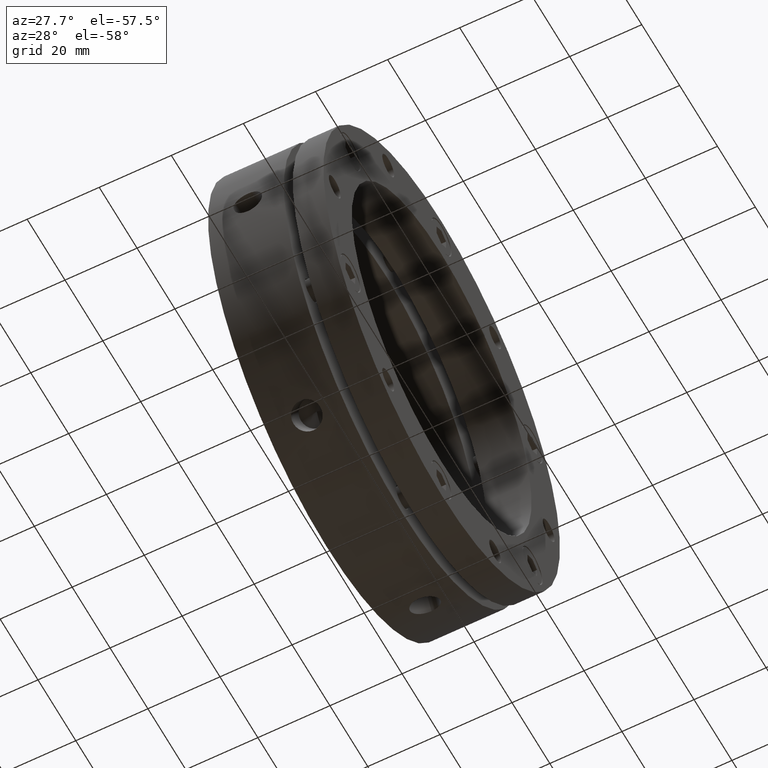
[diagram: clean part render]
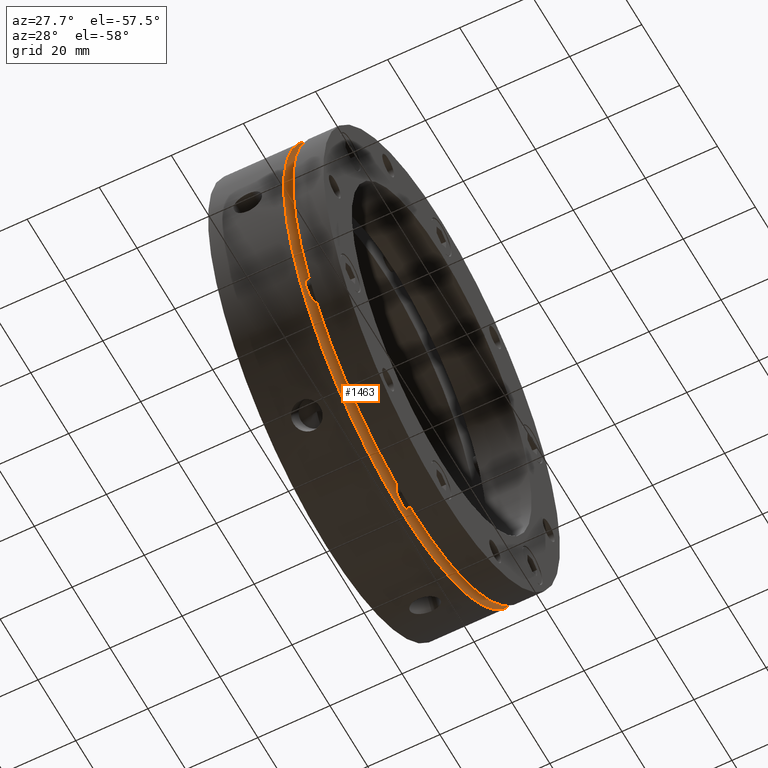
[diagram: same view with one face highlighted and labeled with its STEP entity id]
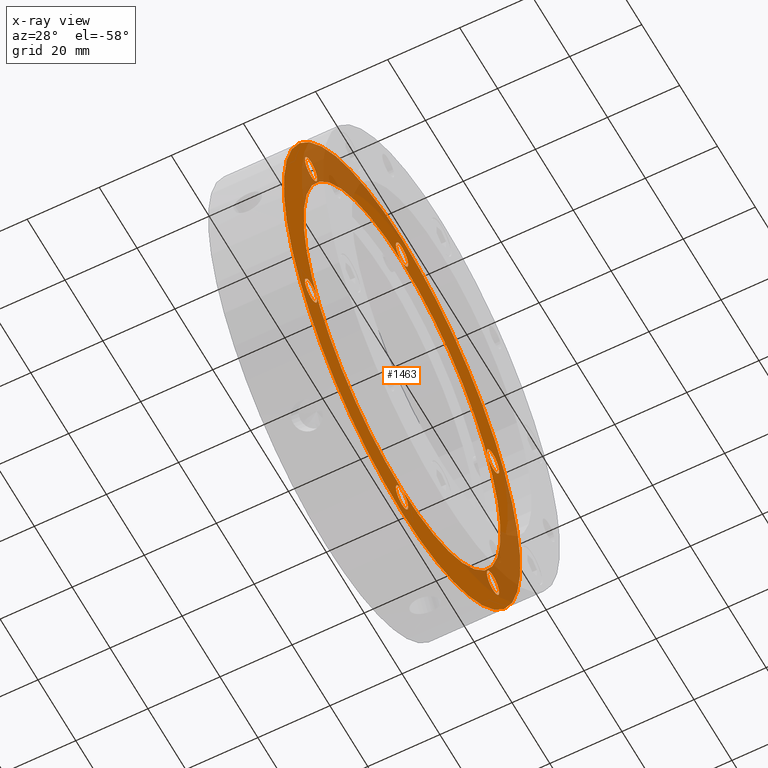
[diagram: x-ray of the same camera — body ghosted, the highlighted face saturated]
A machine part, auxiliary view. The second image highlights one B-rep face of the part: STEP entity #1463.
The next image is the same camera in x-ray: the body ghosted, the highlighted face saturated — about 28% of this face is hidden behind the body in this view.
In plain terms, the highlighted planar face has unit normal (-1, 0, 0).
Its self-contained STEP definition (entity closure, byte-faithful):
#123 = VERTEX_POINT ( 'NONE', #1164 ) ;
#124 = VERTEX_POINT ( 'NONE', #1165 ) ;
#127 = VERTEX_POINT ( 'NONE', #1168 ) ;
#128 = VERTEX_POINT ( 'NONE', #1169 ) ;
#131 = VERTEX_POINT ( 'NONE', #1172 ) ;
#134 = VERTEX_POINT ( 'NONE', #1175 ) ;
#138 = VERTEX_POINT ( 'NONE', #1179 ) ;
#139 = VERTEX_POINT ( 'NONE', #1180 ) ;
#144 = VERTEX_POINT ( 'NONE', #1185 ) ;
#147 = VERTEX_POINT ( 'NONE', #1188 ) ;
#156 = VERTEX_POINT ( 'NONE', #1197 ) ;
#157 = VERTEX_POINT ( 'NONE', #1198 ) ;
#165 = VERTEX_POINT ( 'NONE', #1206 ) ;
#179 = VERTEX_POINT ( 'NONE', #1218 ) ;
#188 = VERTEX_POINT ( 'NONE', #1227 ) ;
#190 = VERTEX_POINT ( 'NONE', #1229 ) ;
#273 = EDGE_LOOP ( 'NONE', ( #966, #965 ) ) ;
#274 = EDGE_LOOP ( 'NONE', ( #968, #967 ) ) ;
#286 = EDGE_LOOP ( 'NONE', ( #970, #969 ) ) ;
#287 = EDGE_LOOP ( 'NONE', ( #964, #963 ) ) ;
#498 = CIRCLE ( 'NONE', #3819, 3.249999999999999600 ) ;
#586 = AXIS2_PLACEMENT_3D ( 'NONE', #4252, #4253, #4254 ) ;
#878 = EDGE_CURVE ( 'NONE', #179, #147, #3376, .T. ) ;
#882 = EDGE_CURVE ( 'NONE', #144, #156, #3371, .T. ) ;
#886 = EDGE_CURVE ( 'NONE', #157, #165, #3365, .T. ) ;
#892 = EDGE_CURVE ( 'NONE', #139, #138, #3355, .T. ) ;
#896 = EDGE_CURVE ( 'NONE', #134, #131, #3349, .T. ) ;
#900 = EDGE_CURVE ( 'NONE', #128, #127, #3343, .T. ) ;
#904 = EDGE_CURVE ( 'NONE', #124, #123, #498, .T. ) ;
#955 = ORIENTED_EDGE ( 'NONE', *, *, #4017, .F. ) ;
#956 = ORIENTED_EDGE ( 'NONE', *, *, #3866, .F. ) ;
#957 = ORIENTED_EDGE ( 'NONE', *, *, #904, .F. ) ;
#958 = ORIENTED_EDGE ( 'NONE', *, *, #3848, .F. ) ;
#959 = ORIENTED_EDGE ( 'NONE', *, *, #900, .F. ) ;
#960 = ORIENTED_EDGE ( 'NONE', *, *, #3881, .F. ) ;
#961 = ORIENTED_EDGE ( 'NONE', *, *, #896, .F. ) ;
#962 = ORIENTED_EDGE ( 'NONE', *, *, #3891, .F. ) ;
#963 = ORIENTED_EDGE ( 'NONE', *, *, #892, .F. ) ;
#964 = ORIENTED_EDGE ( 'NONE', *, *, #3899, .F. ) ;
#965 = ORIENTED_EDGE ( 'NONE', *, *, #886, .F. ) ;
#966 = ORIENTED_EDGE ( 'NONE', *, *, #3888, .F. ) ;
#967 = ORIENTED_EDGE ( 'NONE', *, *, #882, .F. ) ;
#968 = ORIENTED_EDGE ( 'NONE', *, *, #3924, .F. ) ;
#969 = ORIENTED_EDGE ( 'NONE', *, *, #878, .F. ) ;
#970 = ORIENTED_EDGE ( 'NONE', *, *, #3922, .F. ) ;
#1164 = CARTESIAN_POINT ( 'NONE',  ( 20.99999999999998600, 48.06440991003638900, 24.49999999999997900 ) ) ;
#1165 = CARTESIAN_POINT ( 'NONE',  ( 20.99999999999998600, 48.06440991003638900, 30.99999999999997900 ) ) ;
#1168 = CARTESIAN_POINT ( 'NONE',  ( 20.99999999999998600, 48.06440991003636000, -31.00000000000003600 ) ) ;
#1169 = CARTESIAN_POINT ( 'NONE',  ( 20.99999999999998600, 48.06440991003636000, -24.50000000000003600 ) ) ;
#1172 = CARTESIAN_POINT ( 'NONE',  ( 20.99999999999998600, -4.440891999999999900E-015, -58.75000000000002800 ) ) ;
#1175 = CARTESIAN_POINT ( 'NONE',  ( 20.99999999999998600, -4.042881790277110700E-015, -52.25000000000002800 ) ) ;
#1179 = CARTESIAN_POINT ( 'NONE',  ( 20.99999999999998600, -48.06440991003636800, -31.00000000000000400 ) ) ;
#1180 = CARTESIAN_POINT ( 'NONE',  ( 20.99999999999998600, -48.06440991003636800, -24.50000000000000400 ) ) ;
#1185 = CARTESIAN_POINT ( 'NONE',  ( 20.99999999999998600, 3.980102097228895300E-016, 58.75000000000002800 ) ) ;
#1188 = CARTESIAN_POINT ( 'NONE',  ( 20.99999999999998600, 0.0000000000000000000, 52.00000000000000700 ) ) ;
#1197 = CARTESIAN_POINT ( 'NONE',  ( 20.99999999999998600, 0.0000000000000000000, 52.25000000000002800 ) ) ;
#1198 = CARTESIAN_POINT ( 'NONE',  ( 20.99999999999998600, -48.06440991003636800, 31.00000000000001800 ) ) ;
#1206 = CARTESIAN_POINT ( 'NONE',  ( 20.99999999999998600, -48.06440991003636800, 24.50000000000001800 ) ) ;
#1218 = CARTESIAN_POINT ( 'NONE',  ( 20.99999999999998600, 6.368163355566237200E-015, -52.00000000000000700 ) ) ;
#1227 = CARTESIAN_POINT ( 'NONE',  ( 20.99999999999998600, 0.0000000000000000000, -62.50000000000000000 ) ) ;
#1229 = CARTESIAN_POINT ( 'NONE',  ( 20.99999999999998600, 7.654042494670957800E-015, 62.50000000000000000 ) ) ;
#1463 = ADVANCED_FACE ( 'NONE', ( #1638, #1630, #1634, #1636, #1632, #1629, #1628, #1627 ), #2644, .F. ) ;
#1627 = FACE_OUTER_BOUND ( 'NONE', #3743, .T. ) ;
#1628 = FACE_BOUND ( 'NONE', #3744, .T. ) ;
#1629 = FACE_BOUND ( 'NONE', #3745, .T. ) ;
#1630 = FACE_BOUND ( 'NONE', #274, .T. ) ;
#1632 = FACE_BOUND ( 'NONE', #3746, .T. ) ;
#1634 = FACE_BOUND ( 'NONE', #273, .T. ) ;
#1636 = FACE_BOUND ( 'NONE', #287, .T. ) ;
#1638 = FACE_BOUND ( 'NONE', #286, .T. ) ;
#1916 = CIRCLE ( 'NONE', #3504, 3.249999999999999600 ) ;
#1937 = CIRCLE ( 'NONE', #3490, 62.50000000000000000 ) ;
#1958 = CIRCLE ( 'NONE', #3484, 3.249999999999999600 ) ;
#1967 = CIRCLE ( 'NONE', #3479, 3.249999999999999600 ) ;
#1970 = CIRCLE ( 'NONE', #3476, 3.250000000000002700 ) ;
#1979 = CIRCLE ( 'NONE', #3469, 3.249999999999999600 ) ;
#2010 = CIRCLE ( 'NONE', #3455, 52.00000000000000700 ) ;
#2013 = CIRCLE ( 'NONE', #3453, 3.250000000000002700 ) ;
#2141 = CIRCLE ( 'NONE', #586, 62.50000000000000000 ) ;
#2380 = CARTESIAN_POINT ( 'NONE',  ( 20.99999999999998600, 0.0000000000000000000, 0.0000000000000000000 ) ) ;
#2381 = DIRECTION ( 'NONE',  ( 1.000000000000000000, -0.0000000000000000000, -0.0000000000000000000 ) ) ;
#2382 = DIRECTION ( 'NONE',  ( 0.0000000000000000000, 0.0000000000000000000, 1.000000000000000000 ) ) ;
#2391 = CARTESIAN_POINT ( 'NONE',  ( 20.99999999999998600, 0.0000000000000000000, 55.50000000000002800 ) ) ;
#2392 = DIRECTION ( 'NONE',  ( 1.000000000000000000, 0.0000000000000000000, 0.0000000000000000000 ) ) ;
#2393 = DIRECTION ( 'NONE',  ( 0.0000000000000000000, 0.0000000000000000000, -1.000000000000000000 ) ) ;
#2401 = CARTESIAN_POINT ( 'NONE',  ( 20.99999999999998600, -48.06440991003636800, 27.75000000000001800 ) ) ;
#2402 = DIRECTION ( 'NONE',  ( 1.000000000000000000, 0.0000000000000000000, 0.0000000000000000000 ) ) ;
#2403 = DIRECTION ( 'NONE',  ( 0.0000000000000000000, 0.0000000000000000000, -1.000000000000000000 ) ) ;
#2416 = CARTESIAN_POINT ( 'NONE',  ( 20.99999999999998600, -48.06440991003636800, -27.75000000000000400 ) ) ;
#2417 = DIRECTION ( 'NONE',  ( 1.000000000000000000, 0.0000000000000000000, 0.0000000000000000000 ) ) ;
#2418 = DIRECTION ( 'NONE',  ( 0.0000000000000000000, 0.0000000000000000000, -1.000000000000000000 ) ) ;
#2426 = CARTESIAN_POINT ( 'NONE',  ( 20.99999999999998600, -4.440891999999999900E-015, -55.50000000000002800 ) ) ;
#2427 = DIRECTION ( 'NONE',  ( 1.000000000000000000, 0.0000000000000000000, 0.0000000000000000000 ) ) ;
#2428 = DIRECTION ( 'NONE',  ( 0.0000000000000000000, 0.0000000000000000000, -1.000000000000000000 ) ) ;
#2436 = CARTESIAN_POINT ( 'NONE',  ( 20.99999999999998600, 48.06440991003636000, -27.75000000000003600 ) ) ;
#2437 = DIRECTION ( 'NONE',  ( 1.000000000000000000, 0.0000000000000000000, 0.0000000000000000000 ) ) ;
#2438 = DIRECTION ( 'NONE',  ( 0.0000000000000000000, 0.0000000000000000000, -1.000000000000000000 ) ) ;
#2446 = CARTESIAN_POINT ( 'NONE',  ( 20.99999999999998600, 48.06440991003638900, 27.74999999999997900 ) ) ;
#2447 = DIRECTION ( 'NONE',  ( 1.000000000000000000, 0.0000000000000000000, 0.0000000000000000000 ) ) ;
#2448 = DIRECTION ( 'NONE',  ( 0.0000000000000000000, 0.0000000000000000000, -1.000000000000000000 ) ) ;
#2640 = DIRECTION ( 'NONE',  ( -1.000000000000000000, 0.0000000000000000000, 0.0000000000000000000 ) ) ;
#2642 = CARTESIAN_POINT ( 'NONE',  ( 20.99999999999998600, 57.25000000000000000, 0.0000000000000000000 ) ) ;
#2644 = PLANE ( 'NONE',  #3773 ) ;
#2646 = DIRECTION ( 'NONE',  ( 0.0000000000000000000, 0.0000000000000000000, 1.000000000000000000 ) ) ;
#2997 = CARTESIAN_POINT ( 'NONE',  ( 20.99999999999998600, 48.06440991003638900, 27.74999999999997900 ) ) ;
#2998 = DIRECTION ( 'NONE',  ( 1.000000000000000000, 0.0000000000000000000, 0.0000000000000000000 ) ) ;
#2999 = DIRECTION ( 'NONE',  ( 0.0000000000000000000, 0.0000000000000000000, -1.000000000000000000 ) ) ;
#3115 = CARTESIAN_POINT ( 'NONE',  ( 20.99999999999998600, 0.0000000000000000000, 0.0000000000000000000 ) ) ;
#3116 = DIRECTION ( 'NONE',  ( -1.000000000000000000, -0.0000000000000000000, -0.0000000000000000000 ) ) ;
#3117 = DIRECTION ( 'NONE',  ( 0.0000000000000000000, 0.0000000000000000000, -1.000000000000000000 ) ) ;
#3181 = CARTESIAN_POINT ( 'NONE',  ( 20.99999999999998600, 48.06440991003636000, -27.75000000000003600 ) ) ;
#3182 = DIRECTION ( 'NONE',  ( 1.000000000000000000, 0.0000000000000000000, 0.0000000000000000000 ) ) ;
#3183 = DIRECTION ( 'NONE',  ( 0.0000000000000000000, 0.0000000000000000000, -1.000000000000000000 ) ) ;
#3198 = CARTESIAN_POINT ( 'NONE',  ( 20.99999999999998600, -48.06440991003636800, 27.75000000000001800 ) ) ;
#3199 = DIRECTION ( 'NONE',  ( 1.000000000000000000, 0.0000000000000000000, 0.0000000000000000000 ) ) ;
#3200 = DIRECTION ( 'NONE',  ( 0.0000000000000000000, 0.0000000000000000000, -1.000000000000000000 ) ) ;
#3207 = CARTESIAN_POINT ( 'NONE',  ( 20.99999999999998600, -4.440891999999999900E-015, -55.50000000000002800 ) ) ;
#3208 = DIRECTION ( 'NONE',  ( 1.000000000000000000, 0.0000000000000000000, 0.0000000000000000000 ) ) ;
#3209 = DIRECTION ( 'NONE',  ( 0.0000000000000000000, 0.0000000000000000000, -1.000000000000000000 ) ) ;
#3230 = CARTESIAN_POINT ( 'NONE',  ( 20.99999999999998600, -48.06440991003636800, -27.75000000000000400 ) ) ;
#3231 = DIRECTION ( 'NONE',  ( 1.000000000000000000, 0.0000000000000000000, 0.0000000000000000000 ) ) ;
#3232 = DIRECTION ( 'NONE',  ( 0.0000000000000000000, 0.0000000000000000000, -1.000000000000000000 ) ) ;
#3290 = CARTESIAN_POINT ( 'NONE',  ( 20.99999999999998600, 0.0000000000000000000, 0.0000000000000000000 ) ) ;
#3291 = DIRECTION ( 'NONE',  ( 1.000000000000000000, -0.0000000000000000000, -0.0000000000000000000 ) ) ;
#3292 = DIRECTION ( 'NONE',  ( 0.0000000000000000000, 0.0000000000000000000, 1.000000000000000000 ) ) ;
#3298 = CARTESIAN_POINT ( 'NONE',  ( 20.99999999999998600, 0.0000000000000000000, 55.50000000000002800 ) ) ;
#3299 = DIRECTION ( 'NONE',  ( 1.000000000000000000, 0.0000000000000000000, 0.0000000000000000000 ) ) ;
#3300 = DIRECTION ( 'NONE',  ( 0.0000000000000000000, 0.0000000000000000000, -1.000000000000000000 ) ) ;
#3343 = CIRCLE ( 'NONE', #3821, 3.249999999999999600 ) ;
#3349 = CIRCLE ( 'NONE', #3823, 3.250000000000002700 ) ;
#3355 = CIRCLE ( 'NONE', #3825, 3.249999999999999600 ) ;
#3365 = CIRCLE ( 'NONE', #3828, 3.249999999999999600 ) ;
#3371 = CIRCLE ( 'NONE', #3830, 3.250000000000002700 ) ;
#3376 = CIRCLE ( 'NONE', #3832, 52.00000000000000700 ) ;
#3453 = AXIS2_PLACEMENT_3D ( 'NONE', #3298, #3299, #3300 ) ;
#3455 = AXIS2_PLACEMENT_3D ( 'NONE', #3290, #3291, #3292 ) ;
#3469 = AXIS2_PLACEMENT_3D ( 'NONE', #3230, #3231, #3232 ) ;
#3476 = AXIS2_PLACEMENT_3D ( 'NONE', #3207, #3208, #3209 ) ;
#3479 = AXIS2_PLACEMENT_3D ( 'NONE', #3198, #3199, #3200 ) ;
#3484 = AXIS2_PLACEMENT_3D ( 'NONE', #3181, #3182, #3183 ) ;
#3490 = AXIS2_PLACEMENT_3D ( 'NONE', #3115, #3116, #3117 ) ;
#3504 = AXIS2_PLACEMENT_3D ( 'NONE', #2997, #2998, #2999 ) ;
#3743 = EDGE_LOOP ( 'NONE', ( #956, #955 ) ) ;
#3744 = EDGE_LOOP ( 'NONE', ( #958, #957 ) ) ;
#3745 = EDGE_LOOP ( 'NONE', ( #960, #959 ) ) ;
#3746 = EDGE_LOOP ( 'NONE', ( #962, #961 ) ) ;
#3773 = AXIS2_PLACEMENT_3D ( 'NONE', #2642, #2640, #2646 ) ;
#3819 = AXIS2_PLACEMENT_3D ( 'NONE', #2446, #2447, #2448 ) ;
#3821 = AXIS2_PLACEMENT_3D ( 'NONE', #2436, #2437, #2438 ) ;
#3823 = AXIS2_PLACEMENT_3D ( 'NONE', #2426, #2427, #2428 ) ;
#3825 = AXIS2_PLACEMENT_3D ( 'NONE', #2416, #2417, #2418 ) ;
#3828 = AXIS2_PLACEMENT_3D ( 'NONE', #2401, #2402, #2403 ) ;
#3830 = AXIS2_PLACEMENT_3D ( 'NONE', #2391, #2392, #2393 ) ;
#3832 = AXIS2_PLACEMENT_3D ( 'NONE', #2380, #2381, #2382 ) ;
#3848 = EDGE_CURVE ( 'NONE', #123, #124, #1916, .T. ) ;
#3866 = EDGE_CURVE ( 'NONE', #188, #190, #1937, .T. ) ;
#3881 = EDGE_CURVE ( 'NONE', #127, #128, #1958, .T. ) ;
#3888 = EDGE_CURVE ( 'NONE', #165, #157, #1967, .T. ) ;
#3891 = EDGE_CURVE ( 'NONE', #131, #134, #1970, .T. ) ;
#3899 = EDGE_CURVE ( 'NONE', #138, #139, #1979, .T. ) ;
#3922 = EDGE_CURVE ( 'NONE', #147, #179, #2010, .T. ) ;
#3924 = EDGE_CURVE ( 'NONE', #156, #144, #2013, .T. ) ;
#4017 = EDGE_CURVE ( 'NONE', #190, #188, #2141, .T. ) ;
#4252 = CARTESIAN_POINT ( 'NONE',  ( 20.99999999999998600, 0.0000000000000000000, 0.0000000000000000000 ) ) ;
#4253 = DIRECTION ( 'NONE',  ( -1.000000000000000000, -0.0000000000000000000, -0.0000000000000000000 ) ) ;
#4254 = DIRECTION ( 'NONE',  ( 0.0000000000000000000, 0.0000000000000000000, -1.000000000000000000 ) ) ;